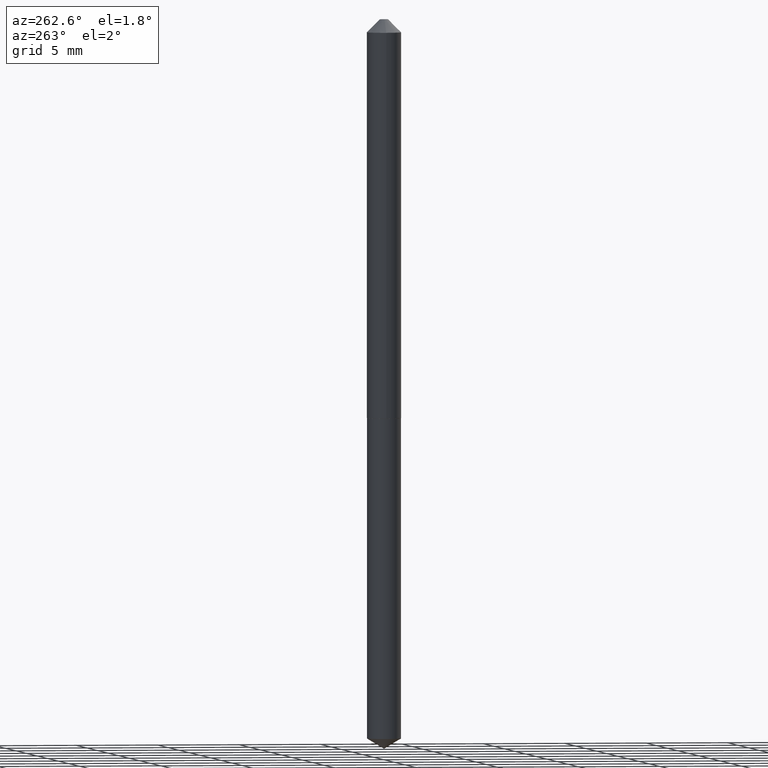
[diagram: clean part render]
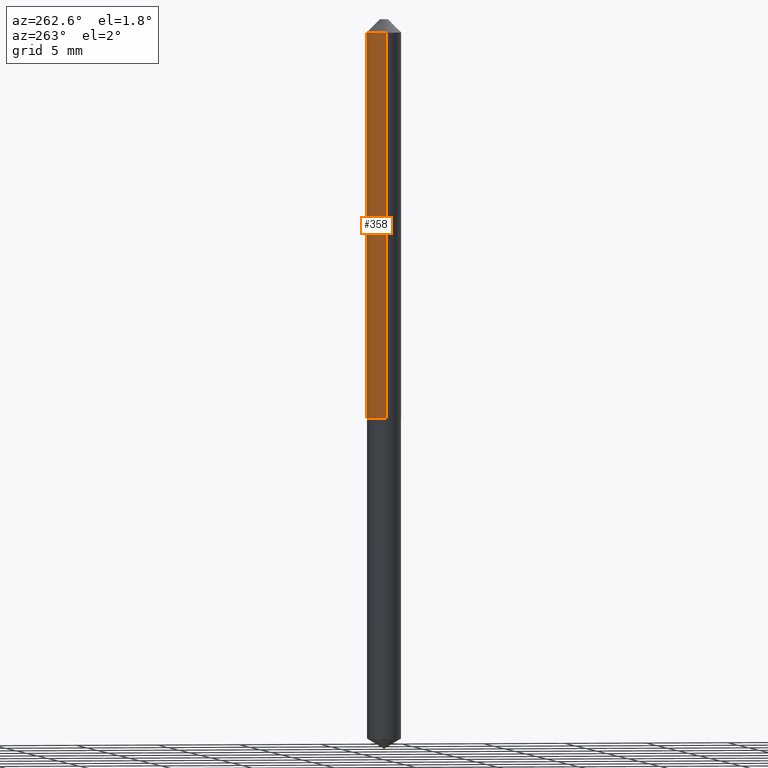
[diagram: same view with one face highlighted and labeled with its STEP entity id]
A machine part, auxiliary view. The second image highlights one B-rep face of the part: STEP entity #358.
In plain terms, the highlighted cylindrical surface (edge-blend (fillet) strip) has radius 1.0414 mm, axis along (-0, 0, 1).
Its self-contained STEP definition (entity closure, byte-faithful):
#4 = DIRECTION ( 'NONE',  ( -2.445468806185136597E-29, 3.491481338843145583E-15, 1.000000000000000000 ) ) ;
#5 = EDGE_CURVE ( 'NONE', #100, #299, #18, .T. ) ;
#11 = DIRECTION ( 'NONE',  ( 1.000000000000000000, -6.982962677686267499E-15, 0.000000000000000000 ) ) ;
#13 = CARTESIAN_POINT ( 'NONE',  ( -0.04100000000000007111, 2.913225216616415815E-16, -2.016763387004515092E-30 ) ) ;
#18 = CIRCLE ( 'NONE', #165, 0.04100000000000011968 ) ;
#27 = CARTESIAN_POINT ( 'NONE',  ( 7.642090019328601786E-31, -1.091087918388490144E-16, -0.03125000000000020123 ) ) ;
#41 = AXIS2_PLACEMENT_3D ( 'NONE', #380, #115, #225 ) ;
#50 = EDGE_CURVE ( 'NONE', #236, #304, #222, .T. ) ;
#71 = DIRECTION ( 'NONE',  ( -2.445468806185136597E-29, 3.491481338843145583E-15, 1.000000000000000000 ) ) ;
#74 = VECTOR ( 'NONE', #77, 39.37007874015748143 ) ;
#77 = DIRECTION ( 'NONE',  ( -2.445468806185136877E-29, 3.491481338843145188E-15, 1.000000000000000000 ) ) ;
#80 = CARTESIAN_POINT ( 'NONE',  ( 0.04100000000000007111, -2.863014697851374814E-16, 1.999232478076336996E-30 ) ) ;
#88 = CARTESIAN_POINT ( 'NONE',  ( 0.04100000000000000866, -3.954102616239860397E-16, -0.03125000000000020123 ) ) ;
#98 = ORIENTED_EDGE ( 'NONE', *, *, #281, .F. ) ;
#100 = VERTEX_POINT ( 'NONE', #370 ) ;
#102 = VECTOR ( 'NONE', #316, 39.37007874015748143 ) ;
#104 = LINE ( 'NONE', #13, #74 ) ;
#115 = DIRECTION ( 'NONE',  ( -2.445468806185136597E-29, 3.491481338843145583E-15, 1.000000000000000000 ) ) ;
#116 = FACE_OUTER_BOUND ( 'NONE', #268, .T. ) ;
#138 = EDGE_CURVE ( 'NONE', #299, #304, #104, .T. ) ;
#150 = ORIENTED_EDGE ( 'NONE', *, *, #50, .F. ) ;
#165 = AXIS2_PLACEMENT_3D ( 'NONE', #270, #4, #326 ) ;
#206 = ORIENTED_EDGE ( 'NONE', *, *, #138, .T. ) ;
#222 = CIRCLE ( 'NONE', #242, 0.04100000000000000866 ) ;
#224 = CARTESIAN_POINT ( 'NONE',  ( -0.04100000000000011968, -3.048279378941826732E-15, -0.9564999999999999059 ) ) ;
#225 = DIRECTION ( 'NONE',  ( 1.000000000000000000, -6.982962677686268288E-15, 4.876176775795935232E-29 ) ) ;
#236 = VERTEX_POINT ( 'NONE', #88 ) ;
#242 = AXIS2_PLACEMENT_3D ( 'NONE', #27, #71, #11 ) ;
#268 = EDGE_LOOP ( 'NONE', ( #335, #206, #150, #98 ) ) ;
#270 = CARTESIAN_POINT ( 'NONE',  ( 2.339090913116082767E-29, -3.339601900603468461E-15, -0.9564999999999999059 ) ) ;
#281 = EDGE_CURVE ( 'NONE', #100, #236, #319, .T. ) ;
#299 = VERTEX_POINT ( 'NONE', #224 ) ;
#304 = VERTEX_POINT ( 'NONE', #313 ) ;
#313 = CARTESIAN_POINT ( 'NONE',  ( -0.04100000000000000866, -1.433032824559516263E-15, -0.03125000000000020123 ) ) ;
#316 = DIRECTION ( 'NONE',  ( -2.445468806185136877E-29, 3.491481338843145188E-15, 1.000000000000000000 ) ) ;
#319 = LINE ( 'NONE', #80, #102 ) ;
#326 = DIRECTION ( 'NONE',  ( 1.000000000000000000, -6.982962677686265922E-15, 0.000000000000000000 ) ) ;
#335 = ORIENTED_EDGE ( 'NONE', *, *, #5, .T. ) ;
#347 = CYLINDRICAL_SURFACE ( 'NONE', #41, 0.04100000000000007111 ) ;
#358 = ADVANCED_FACE ( 'NONE', ( #116 ), #347, .T. ) ;
#370 = CARTESIAN_POINT ( 'NONE',  ( 0.04100000000000011968, -3.625903370388606485E-15, -0.9564999999999999059 ) ) ;
#380 = CARTESIAN_POINT ( 'NONE',  ( 0.000000000000000000, 0.000000000000000000, 0.000000000000000000 ) ) ;